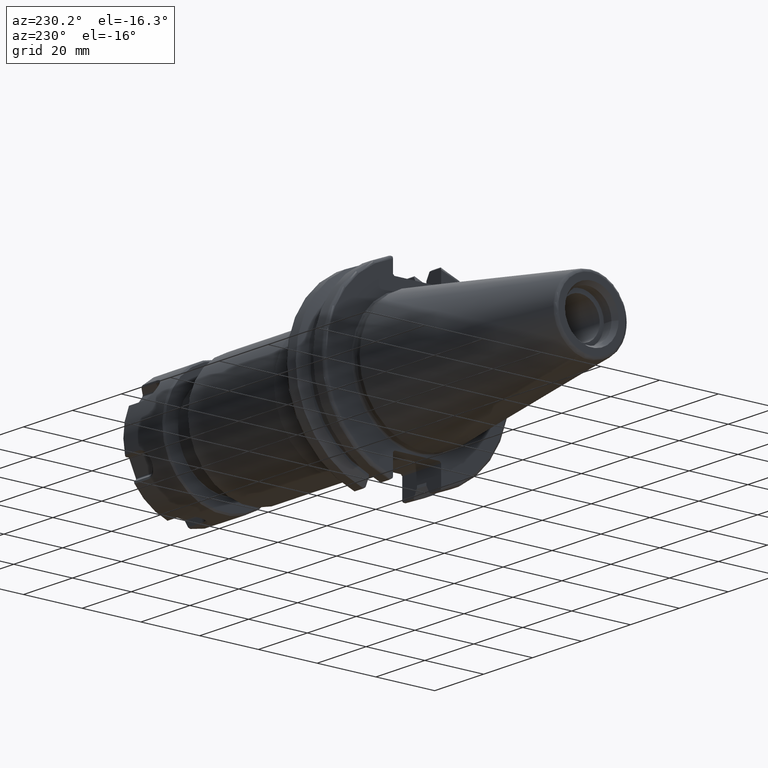
[diagram: clean part render]
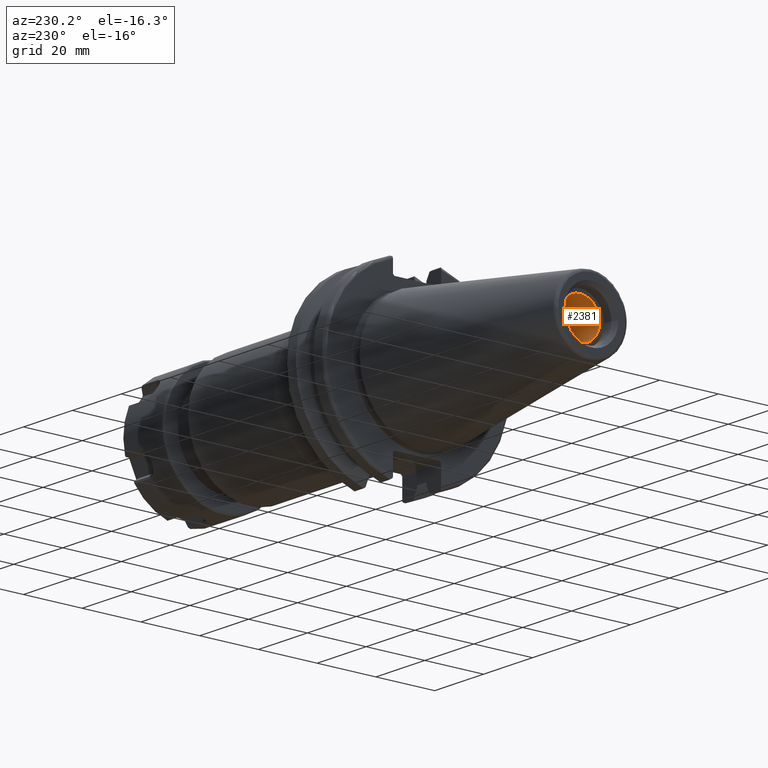
[diagram: same view with one face highlighted and labeled with its STEP entity id]
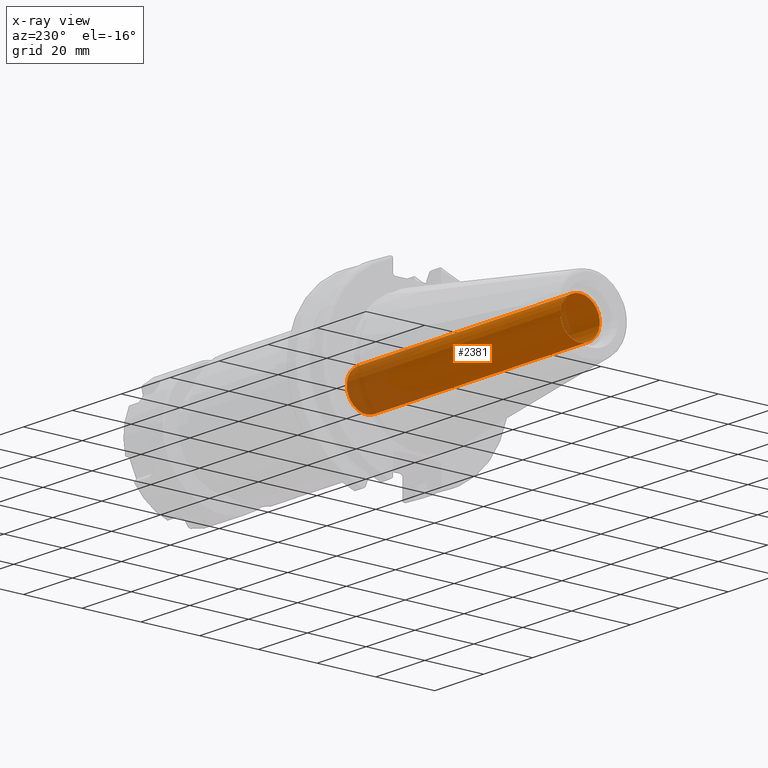
[diagram: x-ray of the same camera — body ghosted, the highlighted face saturated]
A machine part, auxiliary view. The second image highlights one B-rep face of the part: STEP entity #2381.
The next image is the same camera in x-ray: the body ghosted, the highlighted face saturated — about 24% of this face is hidden behind the body in this view.
In plain terms, the highlighted cylindrical surface (bore or boss wall) has radius 6.6929 mm, axis along (-1, 0, 0).
Its self-contained STEP definition (entity closure, byte-faithful):
#302=CYLINDRICAL_SURFACE('',#2603,6.6929);
#336=FACE_OUTER_BOUND('',#479,.T.);
#479=EDGE_LOOP('',(#1659,#1660,#1661,#1662,#1663));
#637=LINE('',#3517,#801);
#801=VECTOR('',#2864,6.6929);
#964=CIRCLE('',#2599,6.6929);
#965=CIRCLE('',#2600,6.6929);
#967=CIRCLE('',#2604,6.6929);
#1069=VERTEX_POINT('',#3505);
#1070=VERTEX_POINT('',#3507);
#1072=VERTEX_POINT('',#3515);
#1297=EDGE_CURVE('',#1070,#1069,#964,.T.);
#1298=EDGE_CURVE('',#1069,#1070,#965,.T.);
#1301=EDGE_CURVE('',#1072,#1072,#967,.T.);
#1302=EDGE_CURVE('',#1072,#1070,#637,.T.);
#1659=ORIENTED_EDGE('',*,*,#1301,.F.);
#1660=ORIENTED_EDGE('',*,*,#1302,.T.);
#1661=ORIENTED_EDGE('',*,*,#1297,.T.);
#1662=ORIENTED_EDGE('',*,*,#1298,.T.);
#1663=ORIENTED_EDGE('',*,*,#1302,.F.);
#2381=ADVANCED_FACE('',(#336),#302,.F.);
#2599=AXIS2_PLACEMENT_3D('',#3508,#2851,#2852);
#2600=AXIS2_PLACEMENT_3D('',#3509,#2853,#2854);
#2603=AXIS2_PLACEMENT_3D('',#3514,#2860,#2861);
#2604=AXIS2_PLACEMENT_3D('',#3516,#2862,#2863);
#2851=DIRECTION('center_axis',(1.,0.,0.));
#2852=DIRECTION('ref_axis',(0.,0.,1.));
#2853=DIRECTION('center_axis',(1.,0.,0.));
#2854=DIRECTION('ref_axis',(0.,0.,1.));
#2860=DIRECTION('center_axis',(-1.,0.,0.));
#2861=DIRECTION('ref_axis',(0.,0.,1.));
#2862=DIRECTION('center_axis',(1.,0.,0.));
#2863=DIRECTION('ref_axis',(0.,0.,1.));
#2864=DIRECTION('',(1.,0.,0.));
#3505=CARTESIAN_POINT('',(23.8903235228665,-8.19643856201332E-16,6.6929));
#3507=CARTESIAN_POINT('',(23.8903235228665,8.19643856201332E-16,-6.6929));
#3508=CARTESIAN_POINT('Origin',(23.8903235228665,0.,0.));
#3509=CARTESIAN_POINT('Origin',(23.8903235228665,0.,0.));
#3514=CARTESIAN_POINT('Origin',(112.528517748592,0.,0.));
#3515=CARTESIAN_POINT('',(-63.45,8.19643856201332E-16,-6.6929));
#3516=CARTESIAN_POINT('Origin',(-63.45,0.,0.));
#3517=CARTESIAN_POINT('',(112.528517748592,-8.19643856201332E-16,-6.6929));